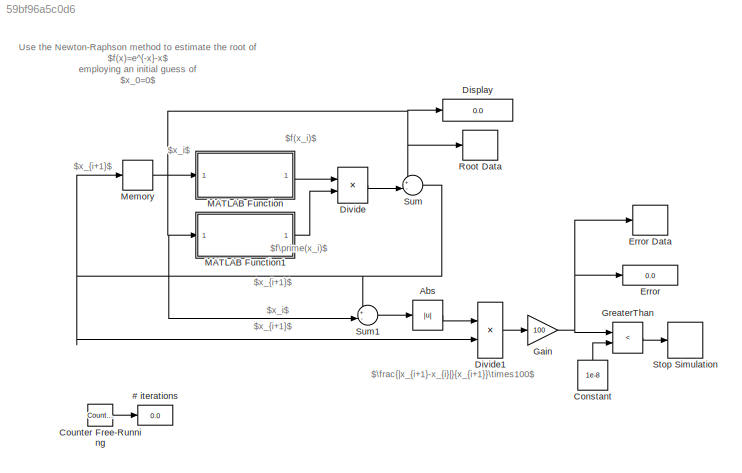
MODEL slx_59bf96a5c0d6
KIND model
CONFIG AbsTol = auto
CONFIG EnableMultiTasking = off
CONFIG FixedStep = 1
CONFIG MaxStep = auto
CONFIG MinStep = auto
CONFIG RelTol = 1e-3
CONFIG SampleTimeConstraint = Unconstrained
CONFIG SolverName = FixedStepDiscrete
CONFIG StartTime = 0.0
CONFIG StopTime = inf
BLOCK [Display] # iterations
  Decimation = 1
  Ports = [1]
BLOCK [Abs] Abs
  SaturateOnIntegerOverflow = off
BLOCK [Constant] Constant
  NameLocation = right
  Value = 1e-8
BLOCK [Reference] Counter Free-Running  REF=simulink/Sources/Counter
Free-Running
  Ports = [0, 1]
  SourceBlock = simulink/Sources/Counter\nFree-Running
  SourceProductBaseCode = SL
  SourceType = Counter Free-Running
BLOCK [Display] Display
  Decimation = 1
  Ports = [1]
BLOCK [Product] Divide
  Inputs = */
  Ports = [2, 1]
BLOCK [Product] Divide1
  Inputs = */
  Ports = [2, 1]
BLOCK [Display] Error
  Decimation = 1
  Ports = [1]
BLOCK [Record] Error Data
  FileSettingsInternal = {"entries":[{"content":{"excelSettings":{"content":{},"type":"Streamout.ExcelSettings"}},"type":"Streamout.FileSettingStorage","uuid":"d0b3212f-3a47-45c4-98f1-de8677493811"}],"packageUris":["http://schema.mathworks.com/mf0/streamout_blocks/R2020a"],"version":"1.0"}
  Ports = [1]
  SignalsInternal = {"entries":[{"content":{"signals":[{"content":{"blockPath":["newton_raphson/Record1"],"channel":[],"dimensions":[1],"domain":"newton_raphson/record1","lineColor":"#fe330a","plots":[1],"port":1,"sid":[""],"signalID":265,"signalName":"Gain"},"type":"RecordBlkView.Signal","uuid":"b320e905-fb17-401b-8dcd-666d29ec7e04"}]},"type":"RecordBlkView.InputSignals","uuid":"6273a4fa-21d6-41ce-9b63-6e90cff081b8"...<+93ch>
  VisualizationBindings = {"sparklinesplugin":{"info":[{"bindingParametersList":[],"subplotID":1}]}}
BLOCK [Gain] Gain
  Gain = 100
BLOCK [RelationalOperator] GreaterThan
  InputSameDT = off
  Operator = <
  OutDataTypeStr = boolean
  Ports = [2, 1]
  RndMeth = Simplest
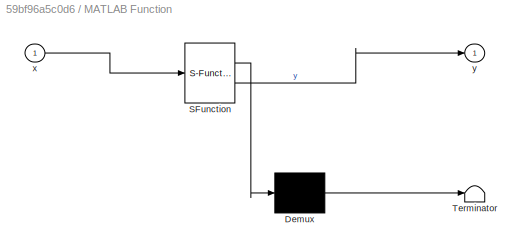
BLOCK [SubSystem] MATLAB Function
  ErrorFcn = Stateflow.Translate.translate
  PermitHierarchicalResolution = ExplicitOnly
  Ports = [1, 1]
  RequestExecContextInheritance = off
  SFBlockType = MATLAB Function
  TreatAsAtomicUnit = on
BLOCK [Demux] MATLAB Function/ Demux 
  Outputs = 1
  Ports = [1, 1]
BLOCK [S-Function] MATLAB Function/ SFunction 
  EnableBusSupport = on
  FunctionName = sf_sfun
  PortCounts = [1 2]
  Ports = [1, 2]
  SFcnIsStateOwnerBlock = off
  SFunctionDeploymentMode = off
  Tag = Stateflow S-Function 2
BLOCK [Terminator] MATLAB Function/ Terminator 
BLOCK [Inport] MATLAB Function/x
BLOCK [Outport] MATLAB Function/y
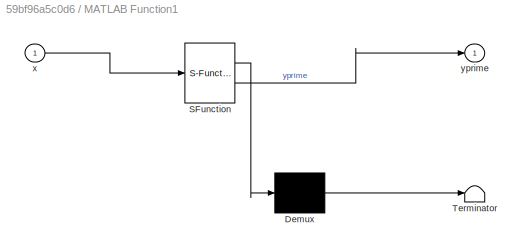
BLOCK [SubSystem] MATLAB Function1
  ErrorFcn = Stateflow.Translate.translate
  PermitHierarchicalResolution = ExplicitOnly
  Ports = [1, 1]
  RequestExecContextInheritance = off
  SFBlockType = MATLAB Function
  TreatAsAtomicUnit = on
BLOCK [Demux] MATLAB Function1/ Demux 
  Outputs = 1
  Ports = [1, 1]
BLOCK [S-Function] MATLAB Function1/ SFunction 
  EnableBusSupport = on
  FunctionName = sf_sfun
  PortCounts = [1 2]
  Ports = [1, 2]
  SFcnIsStateOwnerBlock = off
  SFunctionDeploymentMode = off
  Tag = Stateflow S-Function 1
BLOCK [Terminator] MATLAB Function1/ Terminator 
BLOCK [Inport] MATLAB Function1/x
BLOCK [Outport] MATLAB Function1/yprime
BLOCK [Memory] Memory
BLOCK [Record] Root Data
  FileSettingsInternal = {"entries":[{"content":{"excelSettings":{"content":{},"type":"Streamout.ExcelSettings"}},"type":"Streamout.FileSettingStorage","uuid":"51d8a065-b33e-4dc7-a8b0-b2f22ffb6cb9"}],"packageUris":["http://schema.mathworks.com/mf0/streamout_blocks/R2020a"],"version":"1.0"}
  Ports = [1]
  SignalsInternal = {"entries":[{"content":{"signals":[{"content":{"blockPath":["newton_raphson/Record"],"channel":[],"dimensions":[1],"domain":"newton_raphson/record","lineColor":"#b746ff","plots":[1],"port":1,"sid":[""],"signalID":261,"signalName":"Memory"},"type":"RecordBlkView.Signal","uuid":"4fca3a61-f9fb-45bf-8e35-35e257ddf67f"}]},"type":"RecordBlkView.InputSignals","uuid":"db3476f3-ca96-41ec-8447-a9166ac80719"...<+93ch>
  VisualizationBindings = {"sparklinesplugin":{"info":[{"bindingParametersList":[],"subplotID":1}]}}
BLOCK [Stop] Stop Simulation
BLOCK [Sum] Sum
  Inputs = +-|
  Ports = [2, 1]
BLOCK [Sum] Sum1
  Inputs = +-|
  Ports = [2, 1]
ANNOTATION (root): $\frac{|x_{i+1}-x_{i}|}{x_{i+1}}\times100$
ANNOTATION (root): $f(x_i)$
ANNOTATION (root): $f\prime(x_i)$
ANNOTATION (root): $x_i$
ANNOTATION (root): $x_{i+1}$
ANNOTATION (root): Use the Newton-Raphson method to estimate the root of $f(x)=e^{-x}-x$ employing an initial guess of $x_0=0$
LINE Abs:1 -> Divide1:1
LINE Constant:1 -> GreaterThan:2
LINE Counter Free-Running:1 -> # iterations:1
LINE Divide1:1 -> Gain:1
LINE Divide:1 -> Sum:2
NET Gain:1 -> Error Data:1, Error:1, GreaterThan:1
LINE GreaterThan:1 -> Stop Simulation:1
LINE MATLAB Function1:1 -> Divide:2
LINE MATLAB Function:1 -> Divide:1
NET Memory:1 -> Display:1, MATLAB Function1:1, MATLAB Function:1, Root Data:1, Sum1:2, Sum:1
LINE Sum1:1 -> Abs:1
NET Sum:1 -> Divide1:2, Memory:1, Sum1:1
note: NET lines group one-source signal fan-out (src -> all destinations, sorted); 1:1 wires keep LINE
CHART MATLAB Function states=1 transitions=1
  STATE_LABEL 'eML_blk_kernel()'
  STATE_LABEL 'SCRIPT:\nfunction y = f(x)\n\ny = exp(-x)-x;\n'
CHART MATLAB Function1 states=1 transitions=1
  STATE_LABEL 'eML_blk_kernel()'
  STATE_LABEL 'SCRIPT:\nfunction yprime = fprime(x)\n\nyprime = -exp(-x)-1;\n'
CHART  states=0 transitions=0
CHART  states=0 transitions=0
